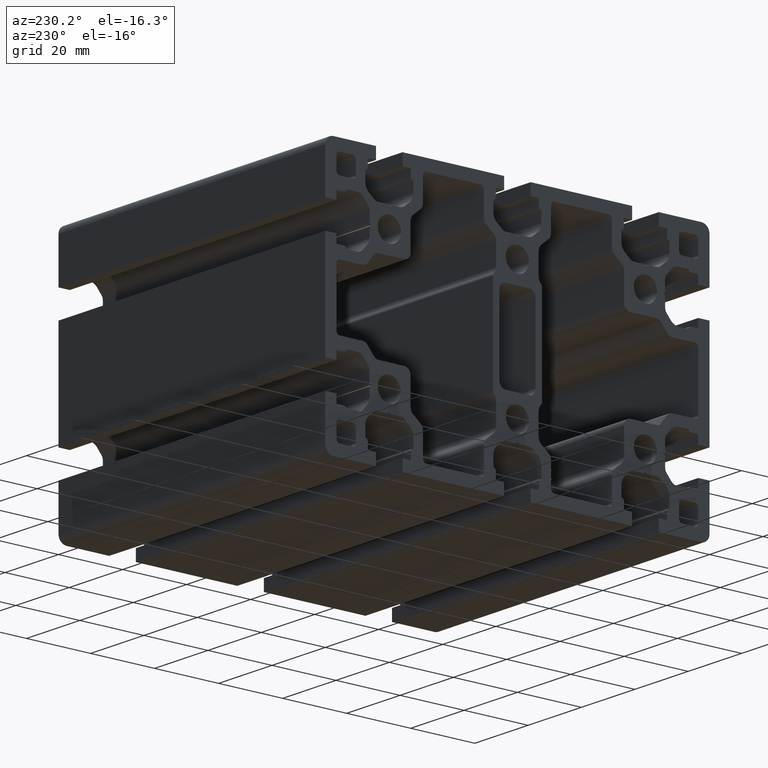
[diagram: clean part render]
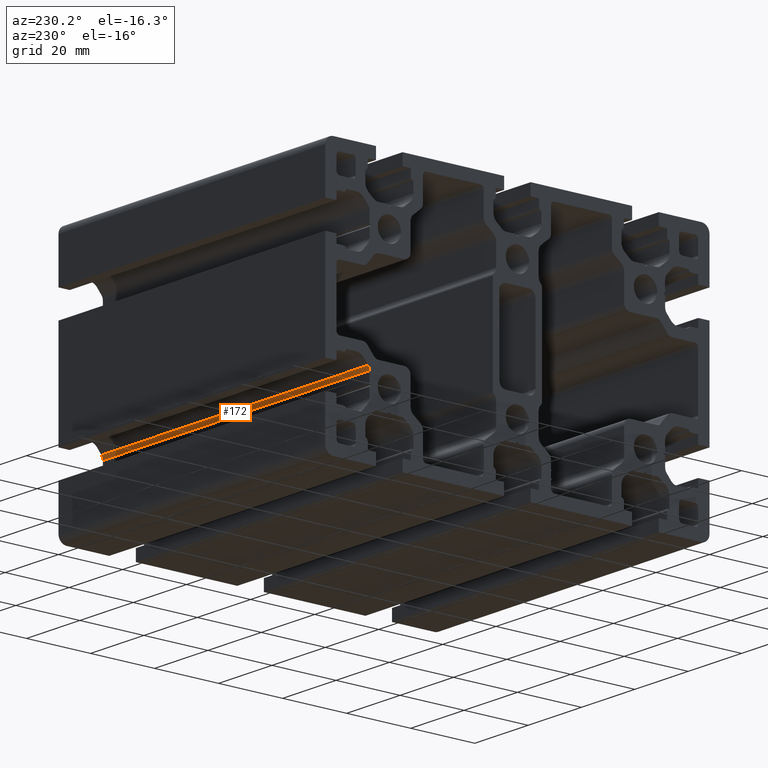
[diagram: same view with one face highlighted and labeled with its STEP entity id]
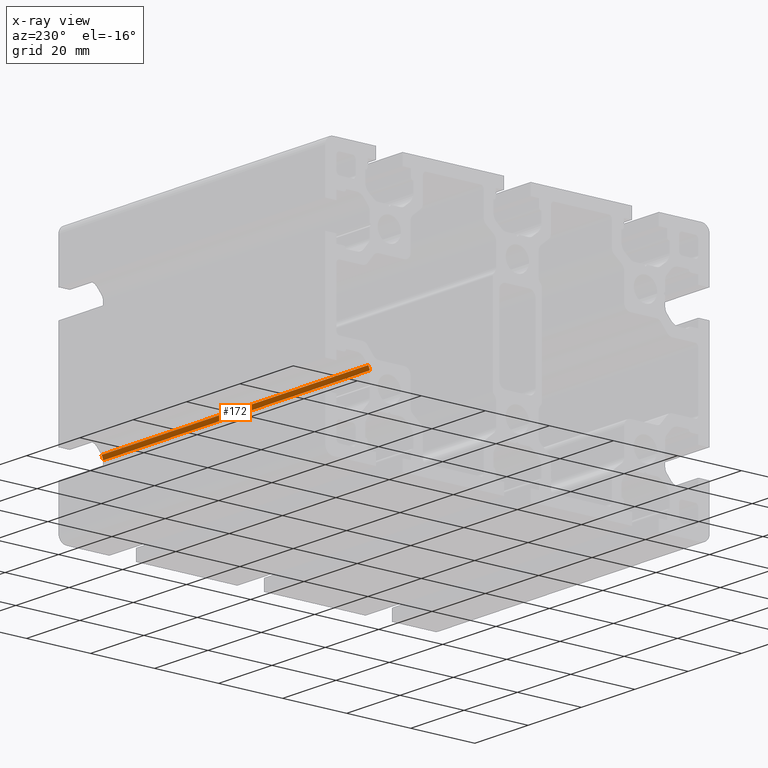
[diagram: x-ray of the same camera — body ghosted, the highlighted face saturated]
A machine part, auxiliary view. The second image highlights one B-rep face of the part: STEP entity #172.
The next image is the same camera in x-ray: the body ghosted, the highlighted face saturated — about 0% of this face is hidden behind the body in this view.
In plain terms, the highlighted cylindrical surface (edge-blend (fillet) strip) has radius 2 mm, axis along (-1, -0, -0).
Its self-contained STEP definition (entity closure, byte-faithful):
#172 = ADVANCED_FACE ( 'NONE', ( #7137 ), #7624, .F. ) ;
#2257 = EDGE_LOOP ( 'NONE', ( #12081, #12075, #12109, #12097 ) ) ;
#3264 = CARTESIAN_POINT ( 'NONE',  ( 0.0000000000000000000, 46.60035188337438000, -15.25418122340587100 ) ) ;
#3450 = CARTESIAN_POINT ( 'NONE',  ( 100.0000000000000000, 46.14993100000936000, -16.51861966053464700 ) ) ;
#3522 = CARTESIAN_POINT ( 'NONE',  ( 0.0000000000000000000, 46.14993100000936000, -16.51861966053464700 ) ) ;
#3641 = DIRECTION ( 'NONE',  ( -1.000000000000000000, -0.0000000000000000000, -0.0000000000000000000 ) ) ;
#3648 = DIRECTION ( 'NONE',  ( -1.000000000000000000, -0.0000000000000000000, -0.0000000000000000000 ) ) ;
#3649 = CARTESIAN_POINT ( 'NONE',  ( 100.0000000000000000, 48.14993100000909700, -16.51861966053459000 ) ) ;
#3675 = DIRECTION ( 'NONE',  ( -1.000000000000000000, -0.0000000000000000000, -0.0000000000000000000 ) ) ;
#3682 = DIRECTION ( 'NONE',  ( -1.000000000000000000, -0.0000000000000000000, -0.0000000000000000000 ) ) ;
#3698 = DIRECTION ( 'NONE',  ( 0.0000000000000000000, 0.0000000000000000000, -1.000000000000000000 ) ) ;
#3788 = CARTESIAN_POINT ( 'NONE',  ( 100.0000000000000000, 46.14993100000936000, -16.51861966053464700 ) ) ;
#3809 = CARTESIAN_POINT ( 'NONE',  ( 0.0000000000000000000, 48.14993100000909700, -16.51861966053459000 ) ) ;
#3812 = DIRECTION ( 'NONE',  ( 0.0000000000000000000, 0.0000000000000000000, -1.000000000000000000 ) ) ;
#3813 = CARTESIAN_POINT ( 'NONE',  ( 100.0000000000000000, 46.60035188337438000, -15.25418122340587100 ) ) ;
#5154 = AXIS2_PLACEMENT_3D ( 'NONE', #3809, #3682, #3698 ) ;
#5160 = AXIS2_PLACEMENT_3D ( 'NONE', #3649, #3648, #3812 ) ;
#5493 = CARTESIAN_POINT ( 'NONE',  ( 100.0000000000000000, 48.14993100000909700, -16.51861966053459000 ) ) ;
#5499 = DIRECTION ( 'NONE',  ( -1.000000000000000000, -0.0000000000000000000, -0.0000000000000000000 ) ) ;
#5698 = DIRECTION ( 'NONE',  ( 0.0000000000000000000, 0.0000000000000000000, 1.000000000000000000 ) ) ;
#6274 = AXIS2_PLACEMENT_3D ( 'NONE', #5493, #5499, #5698 ) ;
#6758 = VERTEX_POINT ( 'NONE', #7811 ) ;
#7137 = FACE_OUTER_BOUND ( 'NONE', #2257, .T. ) ;
#7232 = VERTEX_POINT ( 'NONE', #3788 ) ;
#7294 = VERTEX_POINT ( 'NONE', #3264 ) ;
#7430 = VERTEX_POINT ( 'NONE', #3522 ) ;
#7624 = CYLINDRICAL_SURFACE ( 'NONE', #6274, 1.999999999999738000 ) ;
#7811 = CARTESIAN_POINT ( 'NONE',  ( 100.0000000000000000, 46.60035188337438000, -15.25418122340587100 ) ) ;
#10054 = LINE ( 'NONE', #3813, #10220 ) ;
#10073 = LINE ( 'NONE', #3450, #10226 ) ;
#10075 = CIRCLE ( 'NONE', #5160, 1.999999999999738000 ) ;
#10202 = CIRCLE ( 'NONE', #5154, 1.999999999999738000 ) ;
#10220 = VECTOR ( 'NONE', #3675, 1000.000000000000000 ) ;
#10226 = VECTOR ( 'NONE', #3641, 1000.000000000000000 ) ;
#11436 = EDGE_CURVE ( 'NONE', #7232, #7430, #10073, .T. ) ;
#11437 = EDGE_CURVE ( 'NONE', #7232, #6758, #10075, .T. ) ;
#11439 = EDGE_CURVE ( 'NONE', #6758, #7294, #10054, .T. ) ;
#11440 = EDGE_CURVE ( 'NONE', #7430, #7294, #10202, .T. ) ;
#12075 = ORIENTED_EDGE ( 'NONE', *, *, #11439, .F. ) ;
#12081 = ORIENTED_EDGE ( 'NONE', *, *, #11440, .T. ) ;
#12097 = ORIENTED_EDGE ( 'NONE', *, *, #11436, .T. ) ;
#12109 = ORIENTED_EDGE ( 'NONE', *, *, #11437, .F. ) ;